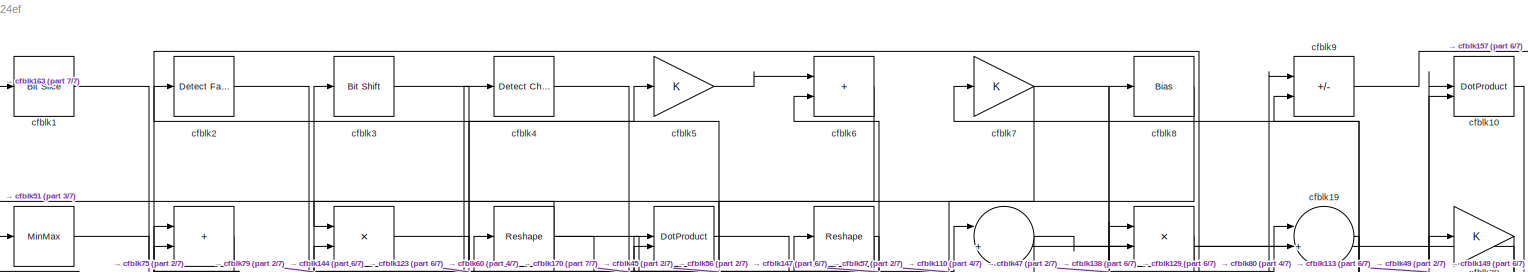
[diagram: root canvas - part 1/7, full width, top band]
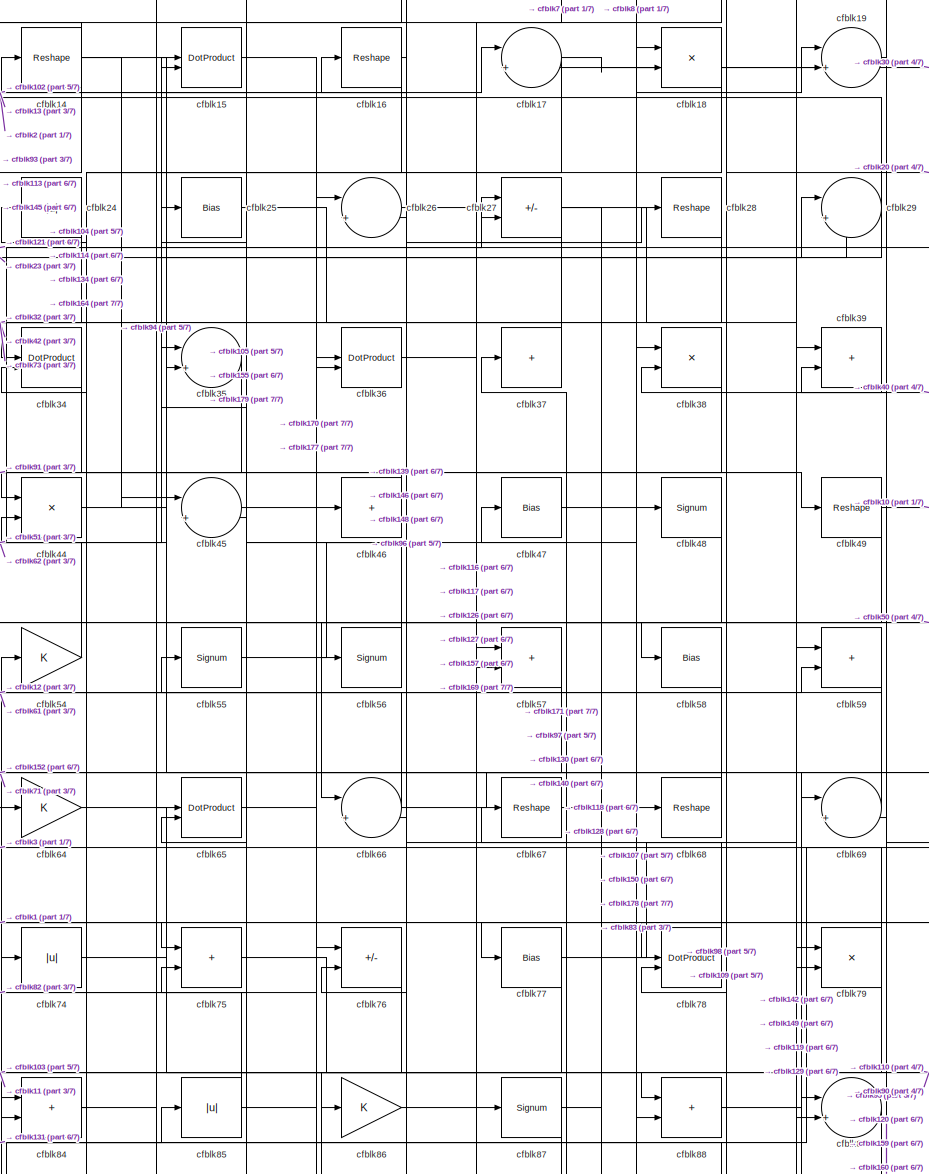
[diagram: root canvas - part 2/7, top center region]
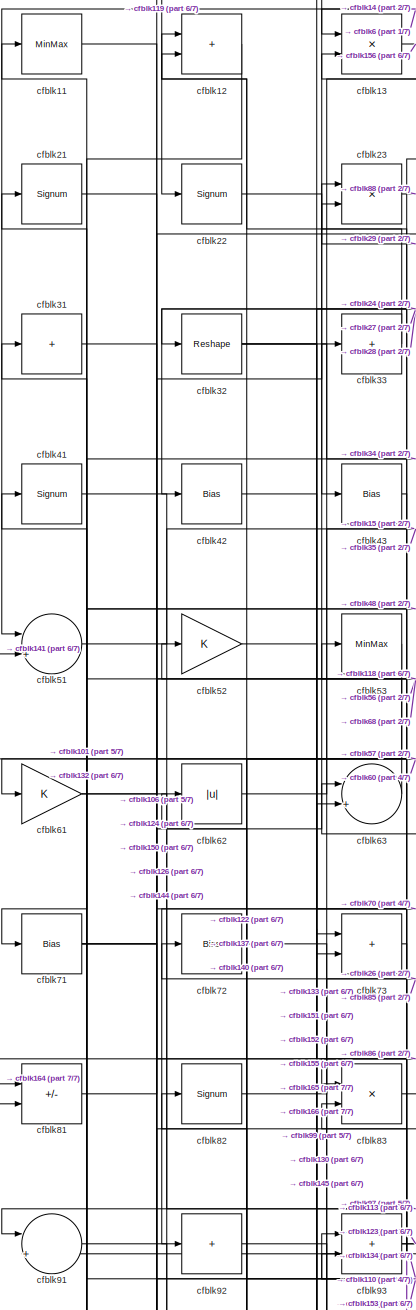
[diagram: root canvas - part 3/7, top left region]
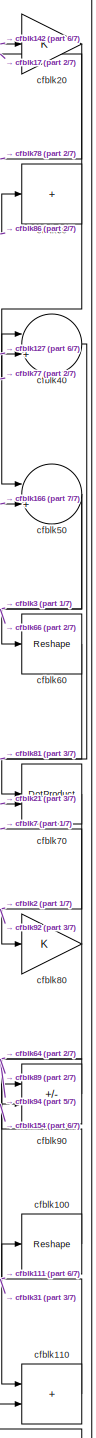
[diagram: root canvas - part 4/7, middle right region]
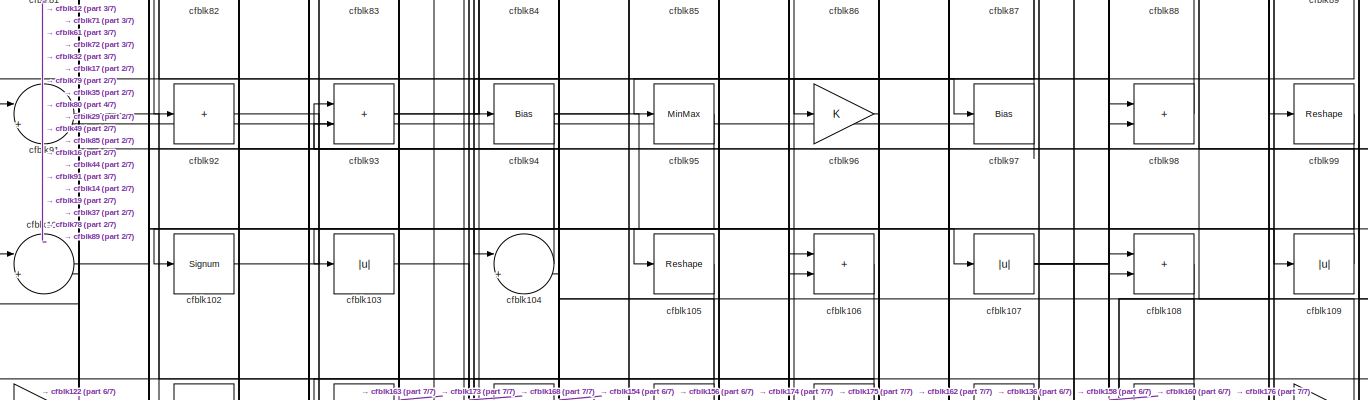
[diagram: root canvas - part 5/7, full width, middle band]
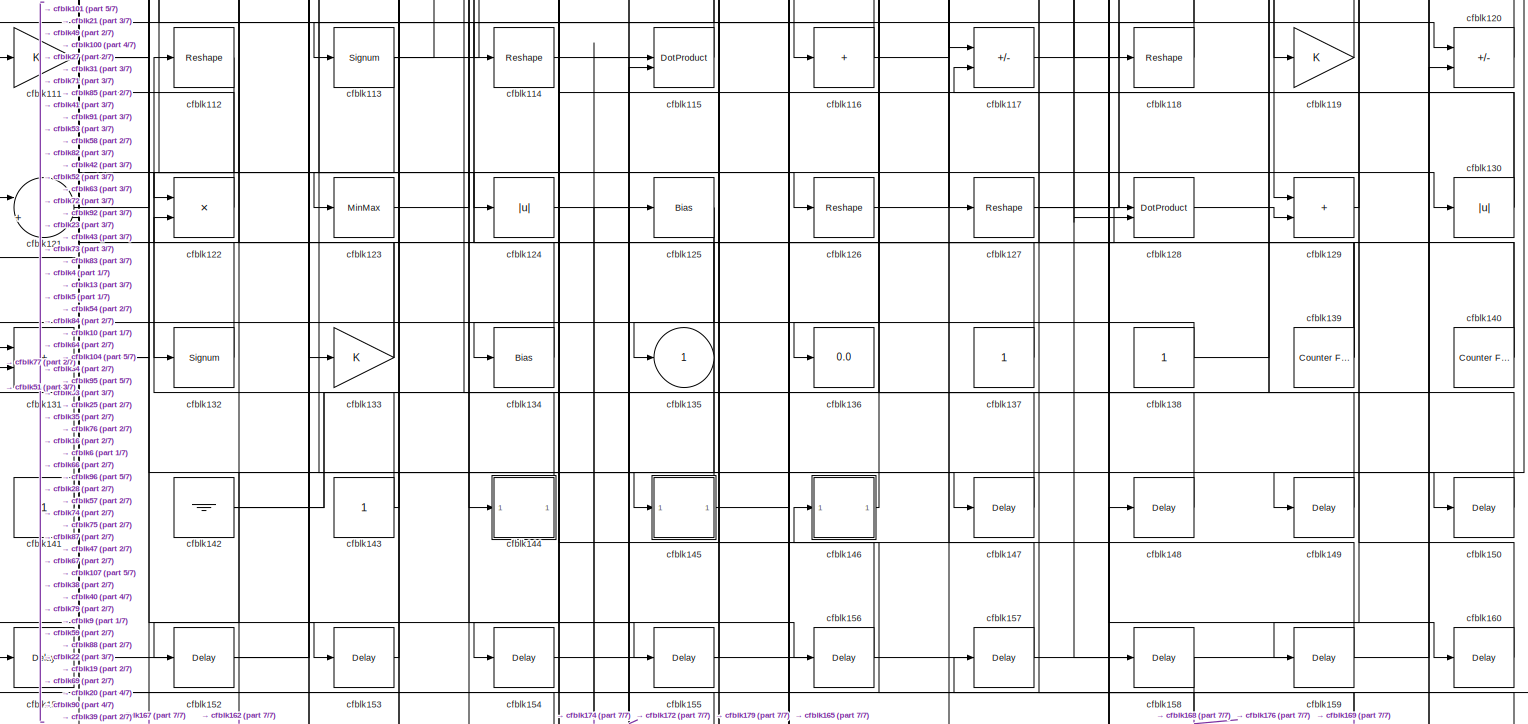
[diagram: root canvas - part 6/7, full width, bottom band]
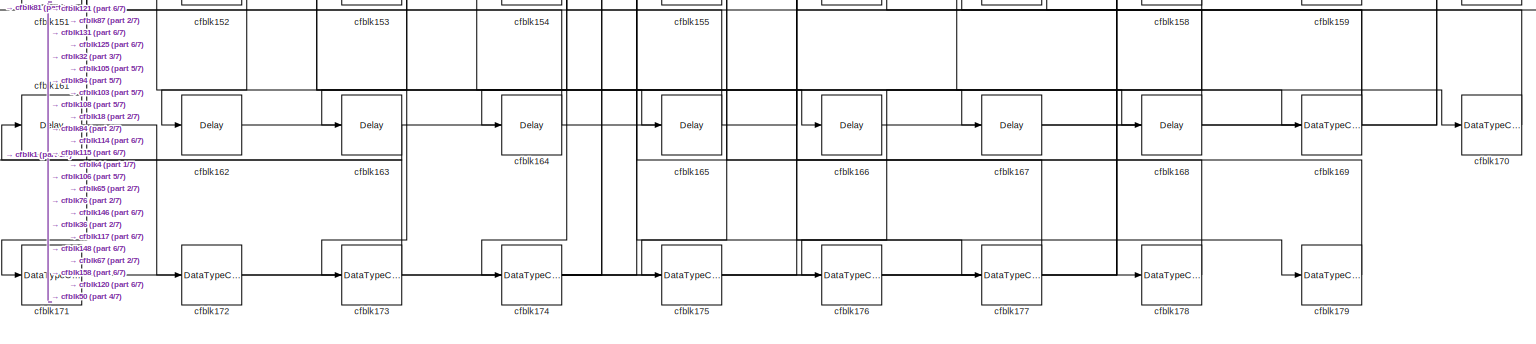
[diagram: root canvas - part 7/7, full width, bottom band]
MODEL slx_8c44f4b424ef
KIND model
CONFIG AbsTol = auto
CONFIG EnableMultiTasking = off
CONFIG FixedStep = auto
CONFIG MaxStep = auto
CONFIG MinStep = auto
CONFIG RelTol = 1e-3
CONFIG SampleTimeConstraint = Unconstrained
CONFIG SolverName = VariableStepAuto
CONFIG StartTime = 0.0
CONFIG StopTime = 10.0
BLOCK [Reference] cfblk1  REF=hdlsllib/Logic and Bit
Operations/Bit Slice
  SourceBlock = hdlsllib/Logic and Bit\nOperations/Bit Slice
  SourceType = Bit Slice
BLOCK [DotProduct] cfblk10
  OutDataTypeStr = Inherit: Inherit via internal rule
BLOCK [Reshape] cfblk100
BLOCK [Sum] cfblk101
  Inputs = |++
BLOCK [Signum] cfblk102
BLOCK [Abs] cfblk103
  SaturateOnIntegerOverflow = off
BLOCK [Sum] cfblk104
  Inputs = |++
BLOCK [Reshape] cfblk105
BLOCK [Sum] cfblk106
  IconShape = rectangular
BLOCK [Abs] cfblk107
  SaturateOnIntegerOverflow = off
BLOCK [Sum] cfblk108
  IconShape = rectangular
BLOCK [Abs] cfblk109
  SaturateOnIntegerOverflow = off
BLOCK [MinMax] cfblk11
BLOCK [Sum] cfblk110
  IconShape = rectangular
BLOCK [Gain] cfblk111
BLOCK [Reshape] cfblk112
BLOCK [Signum] cfblk113
BLOCK [Reshape] cfblk114
BLOCK [DotProduct] cfblk115
  OutDataTypeStr = Inherit: Inherit via internal rule
BLOCK [Sum] cfblk116
  IconShape = rectangular
  Inputs = +
BLOCK [Sum] cfblk117
  IconShape = rectangular
  Inputs = +-
BLOCK [Reshape] cfblk118
BLOCK [Gain] cfblk119
BLOCK [Sum] cfblk12
  IconShape = rectangular
BLOCK [Sum] cfblk120
  IconShape = rectangular
  Inputs = +-
BLOCK [Sum] cfblk121
  Inputs = |++
BLOCK [Product] cfblk122
  Inputs = */
  RndMeth = Zero
  SaturateOnIntegerOverflow = on
BLOCK [MinMax] cfblk123
BLOCK [Abs] cfblk124
  SaturateOnIntegerOverflow = off
BLOCK [Bias] cfblk125
  Bias = 0.0
  SaturateOnIntegerOverflow = off
BLOCK [Reshape] cfblk126
BLOCK [Reshape] cfblk127
BLOCK [DotProduct] cfblk128
  OutDataTypeStr = Inherit: Inherit via internal rule
BLOCK [Sum] cfblk129
  IconShape = rectangular
BLOCK [Product] cfblk13
  Inputs = */
  RndMeth = Zero
  SaturateOnIntegerOverflow = on
BLOCK [Abs] cfblk130
  SaturateOnIntegerOverflow = off
BLOCK [Sum] cfblk131
  IconShape = rectangular
BLOCK [Signum] cfblk132
BLOCK [Gain] cfblk133
BLOCK [Bias] cfblk134
  Bias = 0.0
  SaturateOnIntegerOverflow = off
BLOCK [Outport] cfblk135
  VectorParamsAs1DForOutWhenUnconnected = off
BLOCK [Display] cfblk136
  Decimation = 1
BLOCK [Constant] cfblk137
  SampleTime = -1
BLOCK [Constant] cfblk138
  SampleTime = -1
BLOCK [Reference] cfblk139  REF=hdlsllib/Sources/Counter
Free-Running
  SourceBlock = hdlsllib/Sources/Counter\nFree-Running
  SourceType = Counter Free-Running
BLOCK [Reshape] cfblk14
BLOCK [Reference] cfblk140  REF=hdlsllib/Sources/Counter
Free-Running
  SourceBlock = hdlsllib/Sources/Counter\nFree-Running
  SourceType = Counter Free-Running
BLOCK [Constant] cfblk141
  SampleTime = -1
BLOCK [Ground] cfblk142
BLOCK [Constant] cfblk143
  SampleTime = -1
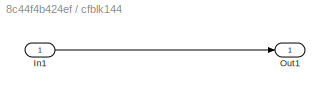
BLOCK [SubSystem] cfblk144
  LibrarySourceBlock = hdlsllib/Ports &\nSubsystems/Subsystem
BLOCK [Inport] cfblk144/In1
BLOCK [Outport] cfblk144/Out1
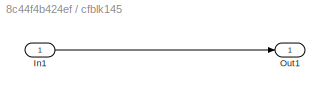
BLOCK [SubSystem] cfblk145
  LibrarySourceBlock = hdlsllib/Ports &\nSubsystems/Subsystem
BLOCK [Inport] cfblk145/In1
BLOCK [Outport] cfblk145/Out1
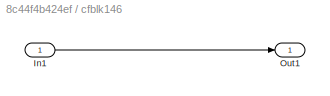
BLOCK [SubSystem] cfblk146
  LibrarySourceBlock = hdlsllib/Ports &\nSubsystems/Subsystem
BLOCK [Inport] cfblk146/In1
BLOCK [Outport] cfblk146/Out1
BLOCK [Delay] cfblk147
  InputPortMap = u0
  SampleTime = 1
BLOCK [Delay] cfblk148
  InputPortMap = u0
  SampleTime = 1
BLOCK [Delay] cfblk149
  InputPortMap = u0
  SampleTime = 1
BLOCK [DotProduct] cfblk15
  OutDataTypeStr = Inherit: Inherit via internal rule
BLOCK [Delay] cfblk150
  InputPortMap = u0
  SampleTime = 1
BLOCK [Delay] cfblk151
  InputPortMap = u0
  SampleTime = 1
BLOCK [Delay] cfblk152
  InputPortMap = u0
  SampleTime = 1
BLOCK [Delay] cfblk153
  InputPortMap = u0
  SampleTime = 1
BLOCK [Delay] cfblk154
  InputPortMap = u0
  SampleTime = 1
BLOCK [Delay] cfblk155
  InputPortMap = u0
  SampleTime = 1
BLOCK [Delay] cfblk156
  InputPortMap = u0
  SampleTime = 1
BLOCK [Delay] cfblk157
  InputPortMap = u0
  SampleTime = 1
BLOCK [Delay] cfblk158
  InputPortMap = u0
  SampleTime = 1
BLOCK [Delay] cfblk159
  InputPortMap = u0
  SampleTime = 1
BLOCK [Reshape] cfblk16
BLOCK [Delay] cfblk160
  InputPortMap = u0
  SampleTime = 1
BLOCK [Delay] cfblk161
  InputPortMap = u0
  SampleTime = 1
BLOCK [Delay] cfblk162
  InputPortMap = u0
  SampleTime = 1
BLOCK [Delay] cfblk163
  InputPortMap = u0
  SampleTime = 1
BLOCK [Delay] cfblk164
  InputPortMap = u0
  SampleTime = 1
BLOCK [Delay] cfblk165
  InputPortMap = u0
  SampleTime = 1
BLOCK [Delay] cfblk166
  InputPortMap = u0
  SampleTime = 1
BLOCK [Delay] cfblk167
  InputPortMap = u0
  SampleTime = 1
BLOCK [Delay] cfblk168
  InputPortMap = u0
  SampleTime = 1
BLOCK [DataTypeConversion] cfblk169
  RndMeth = Floor
  SaturateOnIntegerOverflow = off
BLOCK [Sum] cfblk17
  Inputs = |++
BLOCK [DataTypeConversion] cfblk170
  OutDataTypeStr = uint8
  RndMeth = Floor
  SaturateOnIntegerOverflow = off
BLOCK [DataTypeConversion] cfblk171
  OutDataTypeStr = uint8
  RndMeth = Floor
  SaturateOnIntegerOverflow = off
BLOCK [DataTypeConversion] cfblk172
  OutDataTypeStr = uint8
  RndMeth = Floor
  SaturateOnIntegerOverflow = off
BLOCK [DataTypeConversion] cfblk173
  OutDataTypeStr = uint8
  RndMeth = Floor
  SaturateOnIntegerOverflow = off
BLOCK [DataTypeConversion] cfblk174
  RndMeth = Floor
  SaturateOnIntegerOverflow = off
BLOCK [DataTypeConversion] cfblk175
  OutDataTypeStr = uint8
  RndMeth = Floor
  SaturateOnIntegerOverflow = off
BLOCK [DataTypeConversion] cfblk176
  OutDataTypeStr = uint8
  RndMeth = Floor
  SaturateOnIntegerOverflow = off
BLOCK [DataTypeConversion] cfblk177
  OutDataTypeStr = uint8
  RndMeth = Floor
  SaturateOnIntegerOverflow = off
BLOCK [DataTypeConversion] cfblk178
  OutDataTypeStr = uint8
  RndMeth = Floor
  SaturateOnIntegerOverflow = off
BLOCK [DataTypeConversion] cfblk179
  OutDataTypeStr = uint8
  RndMeth = Floor
  SaturateOnIntegerOverflow = off
BLOCK [Product] cfblk18
  Inputs = */
  RndMeth = Zero
  SaturateOnIntegerOverflow = on
BLOCK [Sum] cfblk19
  Inputs = |++
BLOCK [Reference] cfblk2  REF=hdlsllib/Logic and Bit
Operations/Detect Fall
Negative
  SourceBlock = hdlsllib/Logic and Bit\nOperations/Detect Fall\nNegative
  SourceType = Detect Fall Negative
BLOCK [Gain] cfblk20
BLOCK [Signum] cfblk21
BLOCK [Signum] cfblk22
BLOCK [Product] cfblk23
  Inputs = */
  RndMeth = Zero
  SaturateOnIntegerOverflow = on
BLOCK [Abs] cfblk24
  SaturateOnIntegerOverflow = off
BLOCK [Bias] cfblk25
  Bias = 0.0
  SaturateOnIntegerOverflow = off
BLOCK [Sum] cfblk26
  Inputs = |++
BLOCK [Sum] cfblk27
  IconShape = rectangular
  Inputs = +-
BLOCK [Reshape] cfblk28
BLOCK [Sum] cfblk29
  Inputs = |++
BLOCK [Reference] cfblk3  REF=hdlsllib/Logic and Bit
Operations/Bit Shift
  SourceBlock = hdlsllib/Logic and Bit\nOperations/Bit Shift
  SourceType = Bit Shift
BLOCK [Sum] cfblk30
  IconShape = rectangular
  Inputs = +
BLOCK [Sum] cfblk31
  IconShape = rectangular
  Inputs = +
BLOCK [Reshape] cfblk32
BLOCK [Sum] cfblk33
  IconShape = rectangular
  Inputs = +
BLOCK [DotProduct] cfblk34
  OutDataTypeStr = Inherit: Inherit via internal rule
BLOCK [Sum] cfblk35
  Inputs = |++
BLOCK [DotProduct] cfblk36
  OutDataTypeStr = Inherit: Inherit via internal rule
BLOCK [Sum] cfblk37
  IconShape = rectangular
  Inputs = +
BLOCK [Product] cfblk38
  Inputs = */
  RndMeth = Zero
  SaturateOnIntegerOverflow = on
BLOCK [Sum] cfblk39
  IconShape = rectangular
BLOCK [Reference] cfblk4  REF=simulink/Logic and Bit
Operations/Detect
Change
  LibrarySourceBlock = hdlsllib/Logic and Bit\nOperations/Detect\nChange
  SourceBlock = simulink/Logic and Bit\nOperations/Detect\nChange
  SourceType = Detect Change
BLOCK [Sum] cfblk40
  Inputs = |++
BLOCK [Signum] cfblk41
BLOCK [Bias] cfblk42
  Bias = 0.0
  SaturateOnIntegerOverflow = off
BLOCK [Bias] cfblk43
  Bias = 0.0
  SaturateOnIntegerOverflow = off
BLOCK [Product] cfblk44
  Inputs = */
  RndMeth = Zero
  SaturateOnIntegerOverflow = on
BLOCK [Sum] cfblk45
  Inputs = |++
BLOCK [Sum] cfblk46
  IconShape = rectangular
  Inputs = +
BLOCK [Bias] cfblk47
  Bias = 0.0
  SaturateOnIntegerOverflow = off
BLOCK [Signum] cfblk48
BLOCK [Reshape] cfblk49
BLOCK [Gain] cfblk5
BLOCK [Sum] cfblk50
  Inputs = |++
BLOCK [Sum] cfblk51
  Inputs = |++
BLOCK [Gain] cfblk52
BLOCK [MinMax] cfblk53
BLOCK [Gain] cfblk54
BLOCK [Signum] cfblk55
BLOCK [Signum] cfblk56
BLOCK [Sum] cfblk57
  IconShape = rectangular
BLOCK [Bias] cfblk58
  Bias = 0.0
  SaturateOnIntegerOverflow = off
BLOCK [Sum] cfblk59
  IconShape = rectangular
BLOCK [Sum] cfblk6
  IconShape = rectangular
BLOCK [Reshape] cfblk60
BLOCK [Gain] cfblk61
BLOCK [Abs] cfblk62
  SaturateOnIntegerOverflow = off
BLOCK [Sum] cfblk63
  Inputs = |++
BLOCK [Gain] cfblk64
BLOCK [DotProduct] cfblk65
  OutDataTypeStr = Inherit: Inherit via internal rule
BLOCK [Sum] cfblk66
  Inputs = |++
BLOCK [Reshape] cfblk67
BLOCK [Reshape] cfblk68
BLOCK [Sum] cfblk69
  Inputs = |++
BLOCK [Gain] cfblk7
BLOCK [DotProduct] cfblk70
  OutDataTypeStr = Inherit: Inherit via internal rule
BLOCK [Bias] cfblk71
  Bias = 0.0
  SaturateOnIntegerOverflow = off
BLOCK [Bias] cfblk72
  Bias = 0.0
  SaturateOnIntegerOverflow = off
BLOCK [Sum] cfblk73
  IconShape = rectangular
BLOCK [Abs] cfblk74
  SaturateOnIntegerOverflow = off
BLOCK [Sum] cfblk75
  IconShape = rectangular
BLOCK [Sum] cfblk76
  IconShape = rectangular
  Inputs = +-
BLOCK [Bias] cfblk77
  Bias = 0.0
  SaturateOnIntegerOverflow = off
BLOCK [DotProduct] cfblk78
  OutDataTypeStr = Inherit: Inherit via internal rule
BLOCK [Product] cfblk79
  Inputs = */
  RndMeth = Zero
  SaturateOnIntegerOverflow = on
BLOCK [Bias] cfblk8
  Bias = 0.0
  SaturateOnIntegerOverflow = off
BLOCK [Gain] cfblk80
BLOCK [Sum] cfblk81
  IconShape = rectangular
  Inputs = +-
BLOCK [Signum] cfblk82
BLOCK [Product] cfblk83
  Inputs = */
  RndMeth = Zero
  SaturateOnIntegerOverflow = on
BLOCK [Sum] cfblk84
  IconShape = rectangular
BLOCK [Abs] cfblk85
  SaturateOnIntegerOverflow = off
BLOCK [Gain] cfblk86
BLOCK [Signum] cfblk87
BLOCK [Sum] cfblk88
  IconShape = rectangular
BLOCK [Sum] cfblk89
  Inputs = |++
BLOCK [Sum] cfblk9
  IconShape = rectangular
  Inputs = +-
BLOCK [Sum] cfblk90
  IconShape = rectangular
  Inputs = +-
BLOCK [Sum] cfblk91
  Inputs = |++
BLOCK [Sum] cfblk92
  IconShape = rectangular
  Inputs = +
BLOCK [Sum] cfblk93
  IconShape = rectangular
BLOCK [Bias] cfblk94
  Bias = 0.0
  SaturateOnIntegerOverflow = off
BLOCK [MinMax] cfblk95
BLOCK [Gain] cfblk96
BLOCK [Bias] cfblk97
  Bias = 0.0
  SaturateOnIntegerOverflow = off
BLOCK [Sum] cfblk98
  IconShape = rectangular
BLOCK [Reshape] cfblk99
LINE cfblk100:1 -> cfblk90:1
LINE cfblk101:1 -> cfblk109:1
LINE cfblk102:1 -> cfblk17:1
LINE cfblk103:1 -> cfblk168:1
LINE cfblk104:1 -> cfblk72:1
LINE cfblk105:1 -> cfblk163:1
LINE cfblk106:1 -> cfblk175:1
NET cfblk107:1 -> cfblk158:1, cfblk160:1, cfblk19:1, cfblk19:2
LINE cfblk108:1 -> cfblk174:1
LINE cfblk109:1 -> cfblk78:2
LINE cfblk10:1 -> cfblk149:1
LINE cfblk110:1 -> cfblk31:1
NET cfblk111:1 -> cfblk100:1, cfblk153:1
LINE cfblk112:1 -> cfblk132:1
NET cfblk113:1 -> cfblk10:1, cfblk151:1, cfblk64:1
LINE cfblk114:1 -> cfblk179:1
LINE cfblk115:1 -> cfblk93:1
NET cfblk116:1 -> cfblk111:1, cfblk28:1
LINE cfblk117:1 -> cfblk120:1
LINE cfblk118:1 -> cfblk53:1
LINE cfblk119:1 -> cfblk22:1
LINE cfblk11:1 -> cfblk86:1
LINE cfblk120:1 -> cfblk39:2
LINE cfblk121:1 -> cfblk27:2
LINE cfblk122:1 -> cfblk101:1
LINE cfblk123:1 -> cfblk5:1
LINE cfblk124:1 -> cfblk147:1
NET cfblk125:1 -> cfblk135:1, cfblk162:1
LINE cfblk126:1 -> cfblk87:1
NET cfblk127:1 -> cfblk40:2, cfblk79:2
LINE cfblk128:1 -> cfblk129:2
LINE cfblk129:1 -> cfblk9:2
LINE cfblk12:1 -> cfblk101:2
NET cfblk130:1 -> cfblk34:2, cfblk47:1
NET cfblk131:1 -> cfblk167:1, cfblk85:1
LINE cfblk132:1 -> cfblk21:1
NET cfblk133:1 -> cfblk122:2, cfblk41:1
LINE cfblk134:1 -> cfblk23:1
LINE cfblk137:1 -> cfblk52:1
NET cfblk138:1 -> cfblk131:1, cfblk9:1
NET cfblk139:1 -> cfblk16:1, cfblk25:1, cfblk54:1
LINE cfblk13:1 -> cfblk156:1
NET cfblk140:1 -> cfblk67:1, cfblk82:1
LINE cfblk141:1 -> cfblk51:2
NET cfblk142:1 -> cfblk20:1, cfblk79:1
NET cfblk143:1 -> cfblk112:1, cfblk83:2
LINE cfblk144/In1:1 -> cfblk144/Out1:1
LINE cfblk144:1 -> cfblk4:1
LINE cfblk145/In1:1 -> cfblk145/Out1:1
NET cfblk145:1 -> cfblk128:1, cfblk84:1
LINE cfblk146/In1:1 -> cfblk146/Out1:1
LINE cfblk146:1 -> cfblk76:2
LINE cfblk147:1 -> cfblk6:2
LINE cfblk148:1 -> cfblk66:2
LINE cfblk149:1 -> cfblk39:1
NET cfblk14:1 -> cfblk13:1, cfblk45:1, cfblk83:1, cfblk98:1
LINE cfblk150:1 -> cfblk38:1
LINE cfblk151:1 -> cfblk63:2
LINE cfblk152:1 -> cfblk73:1
LINE cfblk153:1 -> cfblk93:2
LINE cfblk154:1 -> cfblk90:2
LINE cfblk155:1 -> cfblk75:2
LINE cfblk156:1 -> cfblk104:2
LINE cfblk157:1 -> cfblk57:1
LINE cfblk158:1 -> cfblk176:1
LINE cfblk159:1 -> cfblk35:1
LINE cfblk15:1 -> cfblk46:1
LINE cfblk160:1 -> cfblk69:2
LINE cfblk161:1 -> cfblk172:1
LINE cfblk162:1 -> cfblk106:1
LINE cfblk163:1 -> cfblk1:1
LINE cfblk164:1 -> cfblk81:1
LINE cfblk165:1 -> cfblk121:1
LINE cfblk166:1 -> cfblk50:2
LINE cfblk167:1 -> cfblk120:2
LINE cfblk168:1 -> cfblk117:2
NET cfblk169:1 -> cfblk146:1, cfblk84:2
NET cfblk16:1 -> cfblk134:1, cfblk96:1
LINE cfblk170:1 -> cfblk36:1
LINE cfblk171:1 -> cfblk36:2
LINE cfblk172:1 -> cfblk115:2
LINE cfblk173:1 -> cfblk161:1
NET cfblk174:1 -> cfblk115:1, cfblk125:1, cfblk148:1
LINE cfblk175:1 -> cfblk108:1
LINE cfblk176:1 -> cfblk108:2
LINE cfblk177:1 -> cfblk76:1
LINE cfblk178:1 -> cfblk65:1
LINE cfblk179:1 -> cfblk65:2
NET cfblk17:1 -> cfblk18:2, cfblk34:1
LINE cfblk18:1 -> cfblk164:1
LINE cfblk19:1 -> cfblk159:1
LINE cfblk1:1 -> cfblk75:1
LINE cfblk20:1 -> cfblk78:1
LINE cfblk21:1 -> cfblk70:2
LINE cfblk22:1 -> cfblk43:1
LINE cfblk23:1 -> cfblk88:2
LINE cfblk24:1 -> cfblk73:2
LINE cfblk25:1 -> cfblk68:1
LINE cfblk26:1 -> cfblk49:1
NET cfblk27:1 -> cfblk128:2, cfblk32:1, cfblk89:2
LINE cfblk28:1 -> cfblk42:1
NET cfblk29:1 -> cfblk14:1, cfblk23:2
LINE cfblk2:1 -> cfblk80:1
NET cfblk30:1 -> cfblk17:2, cfblk50:1
LINE cfblk31:1 -> cfblk150:1
NET cfblk32:1 -> cfblk165:1, cfblk166:1, cfblk99:1
LINE cfblk33:1 -> cfblk12:2
LINE cfblk34:1 -> cfblk91:1
LINE cfblk35:1 -> cfblk104:1
LINE cfblk36:1 -> cfblk169:1
LINE cfblk37:1 -> cfblk15:2
LINE cfblk38:1 -> cfblk74:1
LINE cfblk39:1 -> cfblk38:2
LINE cfblk3:1 -> cfblk60:1
LINE cfblk40:1 -> cfblk70:1
LINE cfblk41:1 -> cfblk126:1
LINE cfblk42:1 -> cfblk155:1
LINE cfblk43:1 -> cfblk113:1
LINE cfblk44:1 -> cfblk58:1
LINE cfblk45:1 -> cfblk88:1
LINE cfblk46:1 -> cfblk44:1
LINE cfblk47:1 -> cfblk8:1
LINE cfblk48:1 -> cfblk61:1
NET cfblk49:1 -> cfblk105:1, cfblk10:2, cfblk121:2
LINE cfblk4:1 -> cfblk170:1
NET cfblk50:1 -> cfblk66:1, cfblk77:1
LINE cfblk51:1 -> cfblk35:2
LINE cfblk52:1 -> cfblk133:1
LINE cfblk53:1 -> cfblk122:1
LINE cfblk54:1 -> cfblk27:1
LINE cfblk55:1 -> cfblk18:1
NET cfblk56:1 -> cfblk13:2, cfblk2:1
LINE cfblk57:1 -> cfblk71:1
LINE cfblk58:1 -> cfblk152:1
LINE cfblk59:1 -> cfblk119:1
LINE cfblk5:1 -> cfblk6:1
LINE cfblk60:1 -> cfblk81:2
NET cfblk61:1 -> cfblk56:1, cfblk97:1
LINE cfblk62:1 -> cfblk15:1
LINE cfblk63:1 -> cfblk11:1
LINE cfblk64:1 -> cfblk110:1
LINE cfblk65:1 -> cfblk177:1
NET cfblk66:1 -> cfblk55:1, cfblk69:1
LINE cfblk67:1 -> cfblk178:1
LINE cfblk68:1 -> cfblk12:1
LINE cfblk69:1 -> cfblk24:1
LINE cfblk6:1 -> cfblk51:1
LINE cfblk70:1 -> cfblk92:1
NET cfblk71:1 -> cfblk106:2, cfblk124:1, cfblk33:1
LINE cfblk72:1 -> cfblk130:1
LINE cfblk73:1 -> cfblk123:1
LINE cfblk74:1 -> cfblk127:1
LINE cfblk75:1 -> cfblk117:1
LINE cfblk76:1 -> cfblk116:1
NET cfblk77:1 -> cfblk131:2, cfblk40:1
LINE cfblk78:1 -> cfblk26:2
NET cfblk79:1 -> cfblk103:1, cfblk3:1
NET cfblk7:1 -> cfblk110:2, cfblk45:2
NET cfblk80:1 -> cfblk7:1, cfblk94:1
LINE cfblk81:1 -> cfblk63:1
LINE cfblk82:1 -> cfblk26:1
LINE cfblk83:1 -> cfblk59:2
NET cfblk84:1 -> cfblk114:1, cfblk29:2
NET cfblk85:1 -> cfblk62:1, cfblk98:2
LINE cfblk86:1 -> cfblk30:1
NET cfblk87:1 -> cfblk118:1, cfblk171:1
LINE cfblk88:1 -> cfblk129:1
LINE cfblk89:1 -> cfblk95:1
LINE cfblk8:1 -> cfblk57:2
LINE cfblk90:1 -> cfblk89:1
LINE cfblk91:1 -> cfblk144:1
LINE cfblk92:1 -> cfblk145:1
NET cfblk93:1 -> cfblk48:1, cfblk59:1
NET cfblk94:1 -> cfblk107:1, cfblk173:1, cfblk29:1
LINE cfblk95:1 -> cfblk154:1
LINE cfblk96:1 -> cfblk136:1
NET cfblk97:1 -> cfblk44:2, cfblk91:2
LINE cfblk98:1 -> cfblk37:1
LINE cfblk99:1 -> cfblk102:1
LINE cfblk9:1 -> cfblk157:1
note: NET lines group one-source signal fan-out (src -> all destinations, sorted); 1:1 wires keep LINE
